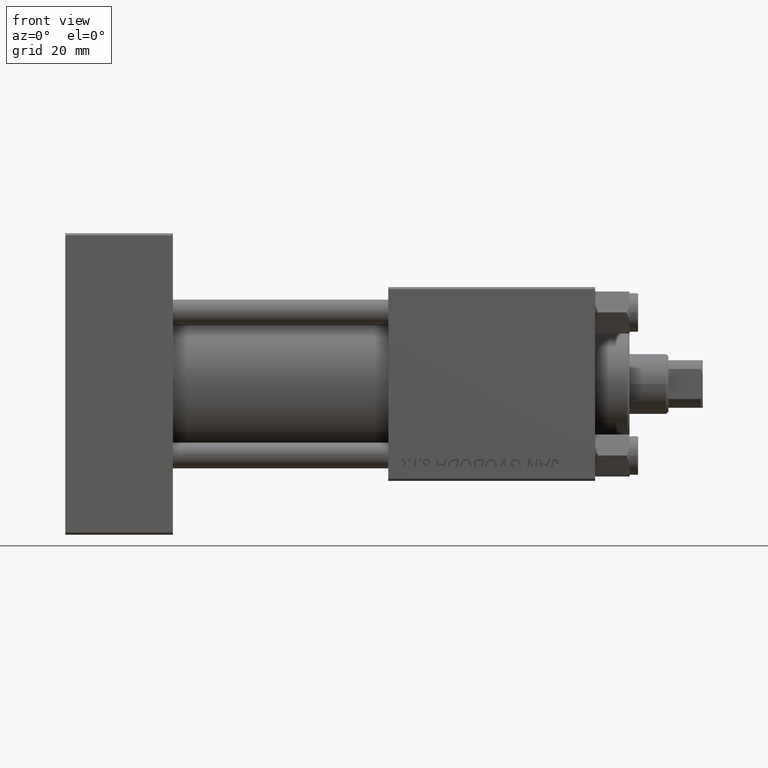
[diagram: clean part render]
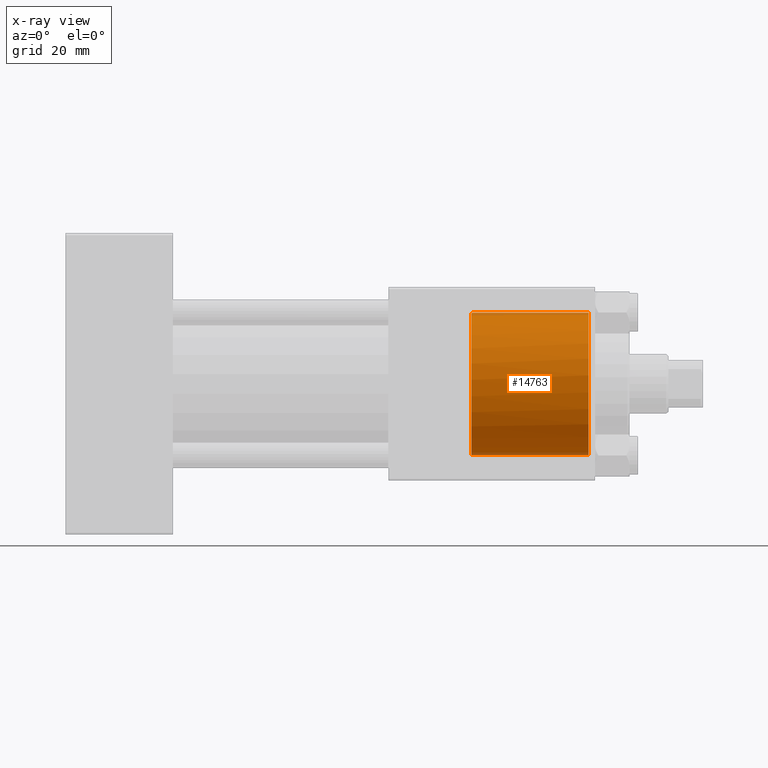
[diagram: x-ray — body ghosted, one internal face saturated and labeled with its STEP entity id]
A machine part, front view, then the same camera in x-ray: the body is ghosted and one INTERNAL B-rep face — a face not visible from any outside direction — is saturated and labeled: STEP entity #14763.
In plain terms, the highlighted cylindrical surface (partial cylindrical patch) has radius 16.5 mm, axis along (1, 0, 0).
Its self-contained STEP definition (entity closure, byte-faithful):
#390 = CARTESIAN_POINT ( 'NONE',  ( 94.58000000000001251, 2.021162037415287302E-15, 16.50000000000000000 ) ) ;
#573 = ORIENTED_EDGE ( 'NONE', *, *, #44769, .F. ) ;
#1078 = DIRECTION ( 'NONE',  ( 0.000000000000000000, 0.000000000000000000, -1.000000000000000000 ) ) ;
#2041 = EDGE_CURVE ( 'NONE', #40263, #3404, #49795, .T. ) ;
#3404 = VERTEX_POINT ( 'NONE', #14925 ) ;
#3895 = VERTEX_POINT ( 'NONE', #8485 ) ;
#4864 = CARTESIAN_POINT ( 'NONE',  ( 94.30000000000001137, 0.000000000000000000, 0.000000000000000000 ) ) ;
#5314 = CARTESIAN_POINT ( 'NONE',  ( 94.30000000000001137, 0.000000000000000000, 0.000000000000000000 ) ) ;
#7222 = CARTESIAN_POINT ( 'NONE',  ( 121.5000000000000000, 2.020667218593133100E-15, 16.50000000000000000 ) ) ;
#8485 = CARTESIAN_POINT ( 'NONE',  ( 94.30000000000001137, 0.000000000000000000, -16.50000000000000000 ) ) ;
#8499 = DIRECTION ( 'NONE',  ( 1.000000000000000000, -0.000000000000000000, -0.000000000000000000 ) ) ;
#11756 = EDGE_CURVE ( 'NONE', #48501, #47473, #44690, .T. ) ;
#12091 = DIRECTION ( 'NONE',  ( 1.000000000000000000, 0.000000000000000000, 0.000000000000000000 ) ) ;
#12432 = CYLINDRICAL_SURFACE ( 'NONE', #34339, 16.50000000000000000 ) ;
#12525 = CIRCLE ( 'NONE', #14136, 16.50000000000000000 ) ;
#14136 = AXIS2_PLACEMENT_3D ( 'NONE', #5314, #39453, #40179 ) ;
#14763 = ADVANCED_FACE ( 'NONE', ( #39734 ), #12432, .F. ) ;
#14925 = CARTESIAN_POINT ( 'NONE',  ( 94.58000000000001251, 2.021162037415287302E-15, 16.50000000000000000 ) ) ;
#20163 = CARTESIAN_POINT ( 'NONE',  ( 94.30000000000001137, -1.899052395275089067, 16.39035081991840670 ) ) ;
#20237 = ORIENTED_EDGE ( 'NONE', *, *, #23911, .T. ) ;
#20487 = AXIS2_PLACEMENT_3D ( 'NONE', #46705, #12091, #27520 ) ;
#20804 = VECTOR ( 'NONE', #8499, 1000.000000000000000 ) ;
#20841 = ORIENTED_EDGE ( 'NONE', *, *, #31046, .F. ) ;
#23911 = EDGE_CURVE ( 'NONE', #3404, #48501, #42112, .T. ) ;
#26692 = VECTOR ( 'NONE', #37003, 1000.000000000000000 ) ;
#27520 = DIRECTION ( 'NONE',  ( 0.000000000000000000, 0.000000000000000000, 1.000000000000000000 ) ) ;
#29468 = CARTESIAN_POINT ( 'NONE',  ( 94.48644965059658318, -1.280516118087126287, 16.46201693687124390 ) ) ;
#30023 = CARTESIAN_POINT ( 'NONE',  ( 121.5000000000000000, 0.000000000000000000, -16.50000000000000000 ) ) ;
#31046 = EDGE_CURVE ( 'NONE', #3895, #47473, #37490, .T. ) ;
#34339 = AXIS2_PLACEMENT_3D ( 'NONE', #4864, #47555, #1078 ) ;
#36125 = ORIENTED_EDGE ( 'NONE', *, *, #11756, .T. ) ;
#37003 = DIRECTION ( 'NONE',  ( 1.000000000000000000, -0.000000000000000000, -0.000000000000000000 ) ) ;
#37061 = CARTESIAN_POINT ( 'NONE',  ( 94.30000000000001137, -1.899052395275089067, 16.39035081991840670 ) ) ;
#37490 = LINE ( 'NONE', #37987, #26692 ) ;
#37987 = CARTESIAN_POINT ( 'NONE',  ( 94.30000000000001137, 0.000000000000000000, -16.50000000000000000 ) ) ;
#39453 = DIRECTION ( 'NONE',  ( 1.000000000000000000, 0.000000000000000000, 0.000000000000000000 ) ) ;
#39734 = FACE_OUTER_BOUND ( 'NONE', #46129, .T. ) ;
#40179 = DIRECTION ( 'NONE',  ( 0.000000000000000000, 0.000000000000000000, -1.000000000000000000 ) ) ;
#40263 = VERTEX_POINT ( 'NONE', #20163 ) ;
#42112 = LINE ( 'NONE', #43116, #20804 ) ;
#42833 = CARTESIAN_POINT ( 'NONE',  ( 94.58000000000001251, -0.6476041116638471262, 16.50000000000000000 ) ) ;
#43116 = CARTESIAN_POINT ( 'NONE',  ( 94.30000000000001137, 2.020667218593133100E-15, 16.50000000000000000 ) ) ;
#44690 = CIRCLE ( 'NONE', #20487, 16.50000000000000000 ) ;
#44769 = EDGE_CURVE ( 'NONE', #40263, #3895, #12525, .T. ) ;
#46129 = EDGE_LOOP ( 'NONE', ( #47096, #20237, #36125, #20841, #573 ) ) ;
#46705 = CARTESIAN_POINT ( 'NONE',  ( 121.5000000000000000, 0.000000000000000000, 0.000000000000000000 ) ) ;
#47096 = ORIENTED_EDGE ( 'NONE', *, *, #2041, .T. ) ;
#47473 = VERTEX_POINT ( 'NONE', #30023 ) ;
#47555 = DIRECTION ( 'NONE',  ( 1.000000000000000000, -0.000000000000000000, -0.000000000000000000 ) ) ;
#48501 = VERTEX_POINT ( 'NONE', #7222 ) ;
#49795 = B_SPLINE_CURVE_WITH_KNOTS ( 'NONE', 3,
 ( #37061, #29468, #42833, #390 ),
 .UNSPECIFIED., .F., .F.,
 ( 4, 4 ),
 ( 0.000000000000000000, 0.001922561461481097408 ),
 .UNSPECIFIED. ) ;